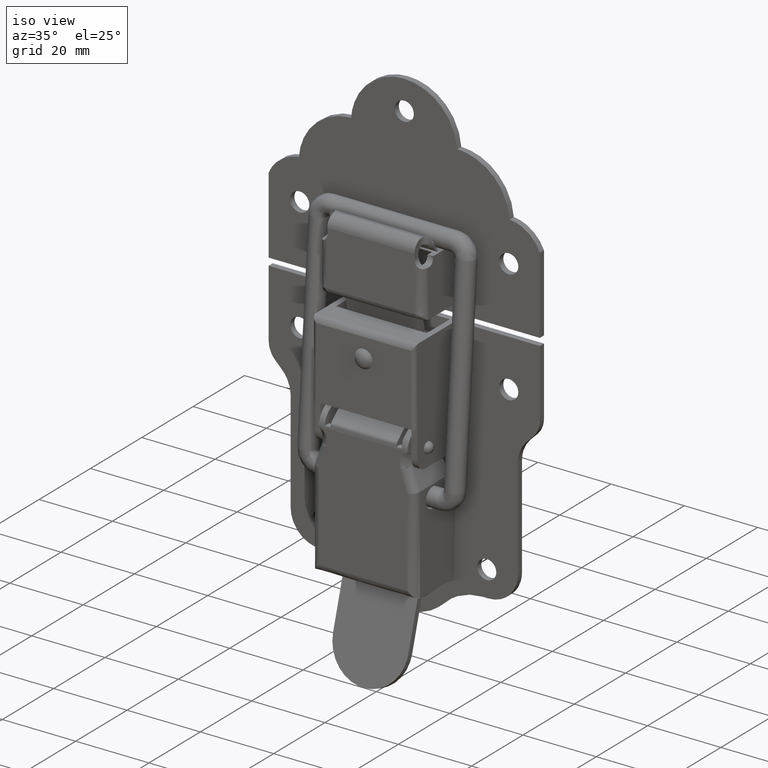
[diagram: clean part render]
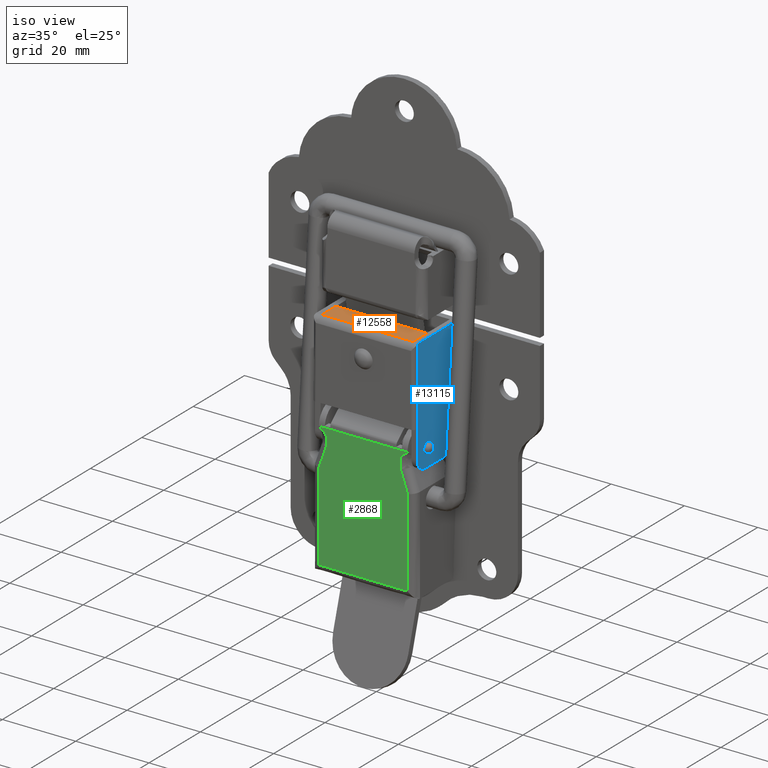
[diagram: same view with three faces highlighted in distinct colors, each labeled with its STEP entity id]
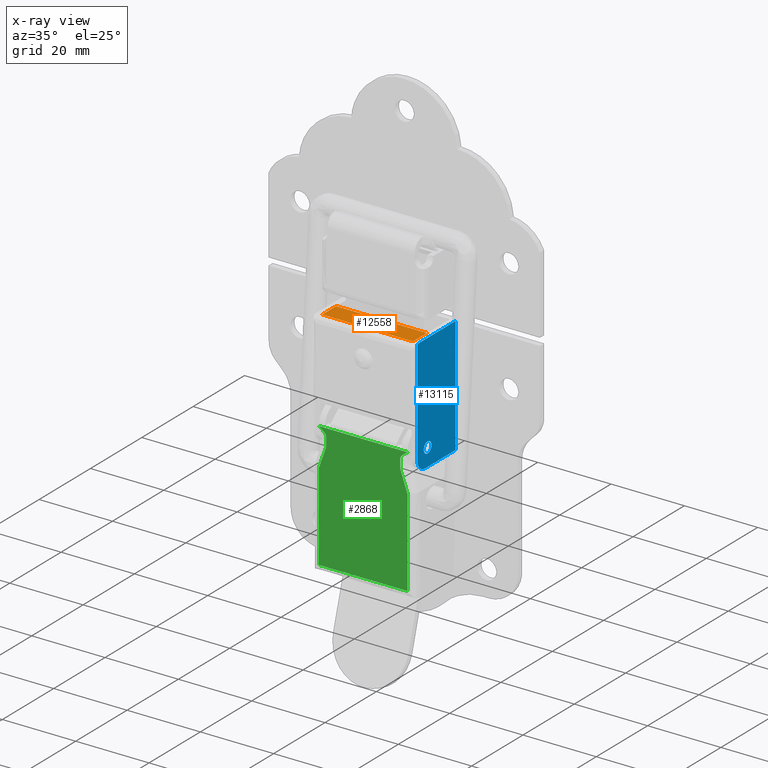
[diagram: x-ray of the same camera — body ghosted, the three highlighted faces saturated]
A machine part, iso view with three faces highlighted in distinct colors.
The next image is the same camera in x-ray (body ghosted, the three faces saturated) — at least one of them is partly hidden behind the body in this view.
Their STEP definitions:

[orange] entity #12558 — the highlighted face is a freeform B-spline surface patch.
#11180=CARTESIAN_POINT('',(12.390000000000001,-3.400000000000000,27.0));
#11181=VERTEX_POINT('',#11180);
#11195=CARTESIAN_POINT('',(-12.390000000000001,-3.400000000000000,27.0));
#11196=VERTEX_POINT('',#11195);
#11197=CARTESIAN_POINT('',(-12.390000000000001,-3.400000000000000,27.0));
#11198=CARTESIAN_POINT('',(12.390000000000001,-3.400000000000000,27.0));
#11199=QUASI_UNIFORM_CURVE('',1,(#11197,#11198),.UNSPECIFIED.,.F.,.U.);
#11200=EDGE_CURVE('',#11196,#11181,#11199,.T.);
#11593=CARTESIAN_POINT('',(12.390000000000001,2.0,27.0));
#11594=VERTEX_POINT('',#11593);
#11595=CARTESIAN_POINT('',(12.390000000000001,2.0,27.0));
#11596=CARTESIAN_POINT('',(12.390000000000001,-3.400000000000000,27.0));
#11597=QUASI_UNIFORM_CURVE('',1,(#11595,#11596),.UNSPECIFIED.,.F.,.U.);
#11598=EDGE_CURVE('',#11594,#11181,#11597,.T.);
#11632=CARTESIAN_POINT('',(-12.390000000000001,2.0,27.0));
#11633=VERTEX_POINT('',#11632);
#11634=CARTESIAN_POINT('',(-12.390000000000001,-3.400000000000000,27.0));
#11635=CARTESIAN_POINT('',(-12.390000000000001,2.0,27.0));
#11636=QUASI_UNIFORM_CURVE('',1,(#11634,#11635),.UNSPECIFIED.,.F.,.U.);
#11637=EDGE_CURVE('',#11196,#11633,#11636,.T.);
#11668=CARTESIAN_POINT('',(-12.390000000000001,2.0,27.0));
#11669=CARTESIAN_POINT('',(12.390000000000001,2.0,27.0));
#11670=QUASI_UNIFORM_CURVE('',1,(#11668,#11669),.UNSPECIFIED.,.F.,.U.);
#11671=EDGE_CURVE('',#11633,#11594,#11670,.T.);
#12547=CARTESIAN_POINT('',(13.627761417205370,-3.669730090916425,27.0));
#12548=CARTESIAN_POINT('',(-13.627761638755841,-3.669730090916425,27.0));
#12549=CARTESIAN_POINT('',(13.627761417205370,2.269730139196187,27.0));
#12550=CARTESIAN_POINT('',(-13.627761638755841,2.269730139196187,27.0));
#12551=B_SPLINE_SURFACE_WITH_KNOTS('',1,1,((#12547,#12549),(#12548,#12550)),.UNSPECIFIED.,.F.,.F.,.U.,(2,2),(2,2),(0.0,27.255523055961209),(0.0,5.939460230112612),.UNSPECIFIED.);
#12552=ORIENTED_EDGE('',*,*,#11637,.F.);
#12553=ORIENTED_EDGE('',*,*,#11200,.T.);
#12554=ORIENTED_EDGE('',*,*,#11598,.F.);
#12555=ORIENTED_EDGE('',*,*,#11671,.F.);
#12556=EDGE_LOOP('',(#12552,#12553,#12554,#12555));
#12557=FACE_OUTER_BOUND('',#12556,.T.);
#12558=ADVANCED_FACE('',(#12557),#12551,.F.);

[blue] entity #13115 — the highlighted face is a freeform B-spline surface patch.
#8192=CARTESIAN_POINT('',(13.999700000000001,1.495376000542177,-0.117688644322557));
#8193=VERTEX_POINT('',#8192);
#8199=CARTESIAN_POINT('',(13.999700000000001,0.0,1.500000000000000));
#8200=VERTEX_POINT('',#8199);
#8201=CARTESIAN_POINT('',(13.999699999999997,1.495376000542178,-0.117688644322557));
#8202=CARTESIAN_POINT('',(13.999700000000002,1.500000000000000,-0.058935161245685));
#8203=CARTESIAN_POINT('',(13.999700000000001,1.500000000000000,0.0));
#8204=CARTESIAN_POINT('',(13.999700000000001,1.500000000000000,1.500000000000000));
#8205=CARTESIAN_POINT('',(13.999700000000001,0.0,1.500000000000000));
#8213=(BOUNDED_CURVE()B_SPLINE_CURVE(2,(#8201,#8202,#8203,#8204,#8205),.UNSPECIFIED.,.F.,.U.)B_SPLINE_CURVE_WITH_KNOTS((3,2,3),(0.736331300465217,0.750000000000000,1.0),.UNSPECIFIED.)CURVE()GEOMETRIC_REPRESENTATION_ITEM()RATIONAL_B_SPLINE_CURVE((0.969723355822151,0.983986122385054,1.0,0.707106781186548,1.0))REPRESENTATION_ITEM(''));
#8214=EDGE_CURVE('',#8193,#8200,#8213,.T.);
#8216=CARTESIAN_POINT('',(13.999700000000001,-1.495376000542178,0.117688644322557));
#8217=VERTEX_POINT('',#8216);
#8218=CARTESIAN_POINT('',(13.999700000000001,0.0,1.500000000000000));
#8219=CARTESIAN_POINT('',(13.999700000000008,-1.386585736127873,1.500000000000000));
#8220=CARTESIAN_POINT('',(13.999700000000001,-1.495376000542177,0.117688644322557));
#8228=(BOUNDED_CURVE()B_SPLINE_CURVE(2,(#8218,#8219,#8220),.UNSPECIFIED.,.F.,.U.)B_SPLINE_CURVE_WITH_KNOTS((3,3),(0.0,0.236331300465217),.UNSPECIFIED.)CURVE()GEOMETRIC_REPRESENTATION_ITEM()RATIONAL_B_SPLINE_CURVE((1.0,0.723120658801494,0.969723355822151))REPRESENTATION_ITEM(''));
#8229=EDGE_CURVE('',#8200,#8217,#8228,.T.);
#8275=CARTESIAN_POINT('',(13.999700000000001,0.0,-1.500000000000000));
#8276=VERTEX_POINT('',#8275);
#8277=CARTESIAN_POINT('',(13.999699999999997,-1.495376000542178,0.117688644322557));
#8278=CARTESIAN_POINT('',(13.999700000000002,-1.500000000000000,0.058935161245685));
#8279=CARTESIAN_POINT('',(13.999700000000001,-1.500000000000000,0.0));
#8280=CARTESIAN_POINT('',(13.999700000000001,-1.500000000000000,-1.500000000000000));
#8281=CARTESIAN_POINT('',(13.999700000000001,0.0,-1.500000000000000));
#8289=(BOUNDED_CURVE()B_SPLINE_CURVE(2,(#8277,#8278,#8279,#8280,#8281),.UNSPECIFIED.,.F.,.U.)B_SPLINE_CURVE_WITH_KNOTS((3,2,3),(0.236331300465217,0.250000000000000,0.500000000000000),.UNSPECIFIED.)CURVE()GEOMETRIC_REPRESENTATION_ITEM()RATIONAL_B_SPLINE_CURVE((0.969723355822151,0.983986122385054,1.0,0.707106781186548,1.0))REPRESENTATION_ITEM(''));
#8290=EDGE_CURVE('',#8217,#8276,#8289,.T.);
#8292=CARTESIAN_POINT('',(13.999700000000001,0.0,-1.500000000000000));
#8293=CARTESIAN_POINT('',(13.999700000000004,1.386585736127881,-1.500000000000000));
#8294=CARTESIAN_POINT('',(13.999699999999999,1.495376000542177,-0.117688644322557));
#8302=(BOUNDED_CURVE()B_SPLINE_CURVE(2,(#8292,#8293,#8294),.UNSPECIFIED.,.F.,.U.)B_SPLINE_CURVE_WITH_KNOTS((3,3),(0.500000000000000,0.736331300465218),.UNSPECIFIED.)CURVE()GEOMETRIC_REPRESENTATION_ITEM()RATIONAL_B_SPLINE_CURVE((1.0,0.723120658801493,0.969723355822153))REPRESENTATION_ITEM(''));
#8303=EDGE_CURVE('',#8276,#8193,#8302,.T.);
#9453=CARTESIAN_POINT('',(13.999700000000001,-1.0,-4.800000000000099));
#9454=VERTEX_POINT('',#9453);
#9460=CARTESIAN_POINT('',(13.999700000000001,-4.0,-1.800000000000095));
#9461=VERTEX_POINT('',#9460);
#9462=CARTESIAN_POINT('',(13.999700000000001,-4.0,-1.800000000000095));
#9463=CARTESIAN_POINT('',(13.999700000000001,-4.000000000000000,-4.800000000000096));
#9464=CARTESIAN_POINT('',(13.999700000000001,-1.0,-4.800000000000095));
#9472=(BOUNDED_CURVE()B_SPLINE_CURVE(2,(#9462,#9463,#9464),.UNSPECIFIED.,.F.,.U.)CURVE()GEOMETRIC_REPRESENTATION_ITEM()QUASI_UNIFORM_CURVE()RATIONAL_B_SPLINE_CURVE((1.0,0.707106781186548,1.0))REPRESENTATION_ITEM(''));
#9473=EDGE_CURVE('',#9461,#9454,#9472,.T.);
#9635=CARTESIAN_POINT('',(13.999700000000001,-4.0,5.999999999999920));
#9636=VERTEX_POINT('',#9635);
#9652=CARTESIAN_POINT('',(13.999700000000001,-4.0,26.883239697419150));
#9653=VERTEX_POINT('',#9652);
#9654=CARTESIAN_POINT('',(13.999700000000001,-4.0,26.883239697419150));
#9655=CARTESIAN_POINT('',(13.999700000000001,-4.0,5.999999999999920));
#9656=QUASI_UNIFORM_CURVE('',1,(#9654,#9655),.UNSPECIFIED.,.F.,.U.);
#9657=EDGE_CURVE('',#9653,#9636,#9656,.T.);
#11136=CARTESIAN_POINT('',(13.999700000000001,-3.399999999999960,27.0));
#11137=VERTEX_POINT('',#11136);
#11138=CARTESIAN_POINT('',(13.999700000000001,-3.400000000000000,27.0));
#11139=CARTESIAN_POINT('',(13.999699999999999,-3.711360806882309,26.999999999999996));
#11140=CARTESIAN_POINT('',(13.999700000000001,-3.999999999999993,26.883239697419139));
#11148=(BOUNDED_CURVE()B_SPLINE_CURVE(2,(#11138,#11139,#11140),.UNSPECIFIED.,.F.,.U.)CURVE()GEOMETRIC_REPRESENTATION_ITEM()QUASI_UNIFORM_CURVE()RATIONAL_B_SPLINE_CURVE((1.0,0.981586677498976,1.0))REPRESENTATION_ITEM(''));
#11149=EDGE_CURVE('',#11137,#9653,#11148,.T.);
#11721=CARTESIAN_POINT('',(13.999700000000001,-4.0,-1.800000000000095));
#11722=CARTESIAN_POINT('',(13.999700000000001,-4.0,5.999999999999920));
#11723=QUASI_UNIFORM_CURVE('',1,(#11721,#11722),.UNSPECIFIED.,.F.,.U.);
#11724=EDGE_CURVE('',#9461,#9636,#11723,.T.);
#12644=CARTESIAN_POINT('',(13.999700000000001,10.900000000000119,27.0));
#12645=VERTEX_POINT('',#12644);
#12651=CARTESIAN_POINT('',(13.999700000000001,10.900000000000119,-4.800000000000099));
#12652=VERTEX_POINT('',#12651);
#12653=CARTESIAN_POINT('',(13.999700000000001,10.900000000000119,-4.800000000000099));
#12654=CARTESIAN_POINT('',(13.999700000000001,10.900000000000119,27.0));
#12655=QUASI_UNIFORM_CURVE('',1,(#12653,#12654),.UNSPECIFIED.,.F.,.U.);
#12656=EDGE_CURVE('',#12652,#12645,#12655,.T.);
#12728=CARTESIAN_POINT('',(13.999700000000001,-1.0,-4.800000000000099));
#12729=CARTESIAN_POINT('',(13.999700000000001,10.900000000000119,-4.800000000000099));
#12730=QUASI_UNIFORM_CURVE('',1,(#12728,#12729),.UNSPECIFIED.,.F.,.U.);
#12731=EDGE_CURVE('',#9454,#12652,#12730,.T.);
#12812=CARTESIAN_POINT('',(13.999700000000001,-3.399999999999960,27.0));
#12813=CARTESIAN_POINT('',(13.999700000000001,10.900000000000119,27.0));
#12814=QUASI_UNIFORM_CURVE('',1,(#12812,#12813),.UNSPECIFIED.,.F.,.U.);
#12815=EDGE_CURVE('',#11137,#12645,#12814,.T.);
#13095=CARTESIAN_POINT('',(13.999700000000001,-4.744254917887648,-6.388410236881183));
#13096=CARTESIAN_POINT('',(13.999700000000001,-4.744254917887648,28.588410805509390));
#13097=CARTESIAN_POINT('',(13.999700000000001,11.644254251805870,-6.388410236881182));
#13098=CARTESIAN_POINT('',(13.999700000000001,11.644254251805870,28.588410805509390));
#13099=B_SPLINE_SURFACE_WITH_KNOTS('',1,1,((#13095,#13097),(#13096,#13098)),.UNSPECIFIED.,.F.,.F.,.U.,(2,2),(2,2),(0.0,34.976821042390583),(0.0,16.388509169693510),.UNSPECIFIED.);
#13100=ORIENTED_EDGE('',*,*,#11724,.F.);
#13101=ORIENTED_EDGE('',*,*,#9473,.T.);
#13102=ORIENTED_EDGE('',*,*,#12731,.T.);
#13103=ORIENTED_EDGE('',*,*,#12656,.T.);
#13104=ORIENTED_EDGE('',*,*,#12815,.F.);
#13105=ORIENTED_EDGE('',*,*,#11149,.T.);
#13106=ORIENTED_EDGE('',*,*,#9657,.T.);
#13107=EDGE_LOOP('',(#13100,#13101,#13102,#13103,#13104,#13105,#13106));
#13108=FACE_OUTER_BOUND('',#13107,.T.);
#13109=ORIENTED_EDGE('',*,*,#8303,.F.);
#13110=ORIENTED_EDGE('',*,*,#8290,.F.);
#13111=ORIENTED_EDGE('',*,*,#8229,.F.);
#13112=ORIENTED_EDGE('',*,*,#8214,.F.);
#13113=EDGE_LOOP('',(#13109,#13110,#13111,#13112));
#13114=FACE_BOUND('',#13113,.T.);
#13115=ADVANCED_FACE('',(#13108,#13114),#13099,.F.);

[green] entity #2868 — the highlighted face is a freeform B-spline surface patch.
#1280=CARTESIAN_POINT('',(12.099700000000000,-5.100000000000001,-34.0));
#1281=VERTEX_POINT('',#1280);
#1297=CARTESIAN_POINT('',(-12.100000000000000,-5.100000000000001,-34.0));
#1298=VERTEX_POINT('',#1297);
#1299=CARTESIAN_POINT('',(-12.100000000000000,-5.100000000000001,-34.0));
#1300=CARTESIAN_POINT('',(12.099700000000000,-5.100000000000001,-34.0));
#1301=QUASI_UNIFORM_CURVE('',1,(#1299,#1300),.UNSPECIFIED.,.F.,.U.);
#1302=EDGE_CURVE('',#1298,#1281,#1301,.T.);
#1446=CARTESIAN_POINT('',(10.100000000000000,-5.100000000000001,-4.339120772238675));
#1447=VERTEX_POINT('',#1446);
#1493=CARTESIAN_POINT('',(12.100000000000000,-5.099999999999910,0.249999999999915));
#1494=VERTEX_POINT('',#1493);
#1502=CARTESIAN_POINT('',(10.100000000000000,-5.100000000000001,-2.044560386119382));
#1503=VERTEX_POINT('',#1502);
#1504=CARTESIAN_POINT('',(10.100000000000000,-5.100000000000001,-2.044560386119382));
#1505=CARTESIAN_POINT('',(10.100000000000000,-5.100000000000001,-1.988040257412936));
#1506=CARTESIAN_POINT('',(10.100000000000000,-5.100000000000001,-1.931520128706491));
#1507=CARTESIAN_POINT('',(10.100000000000000,-5.100000000000001,-1.875000000000045));
#1508=CARTESIAN_POINT('',(10.100000000000000,-5.100000000000001,-1.166666666666722));
#1509=CARTESIAN_POINT('',(11.100000000000000,-5.100000000000001,-0.458333333333403));
#1510=CARTESIAN_POINT('',(12.100000000000000,-5.099999999999910,0.249999999999915));
#1511=B_SPLINE_CURVE_WITH_KNOTS('',3,(#1504,#1505,#1506,#1507,#1508,#1509,#1510),.UNSPECIFIED.,.F.,.U.,(4,3,4),(0.833333333333346,0.845649446051136,1.0),.UNSPECIFIED.);
#1512=EDGE_CURVE('',#1503,#1494,#1511,.T.);
#1514=CARTESIAN_POINT('',(10.100000000000000,-5.100000000000001,-4.339120772238675));
#1515=CARTESIAN_POINT('',(10.100000000000000,-5.100000000000001,-3.574267310198910));
#1516=CARTESIAN_POINT('',(10.100000000000000,-5.100000000000001,-2.809413848159146));
#1517=CARTESIAN_POINT('',(10.100000000000000,-5.100000000000001,-2.044560386119382));
#1518=B_SPLINE_CURVE_WITH_KNOTS('',3,(#1514,#1515,#1516,#1517),.UNSPECIFIED.,.F.,.U.,(4,4),(0.666666666666692,0.833333333333346),.UNSPECIFIED.);
#1519=EDGE_CURVE('',#1447,#1503,#1518,.T.);
#1538=CARTESIAN_POINT('',(12.099700000000000,-5.100000000000001,-10.066305112236799));
#1539=VERTEX_POINT('',#1538);
#1563=CARTESIAN_POINT('',(12.099700000000000,-5.100000000000001,-10.066305112236799));
#1564=CARTESIAN_POINT('',(10.100000000000000,-5.100000000000001,-4.339120772238675));
#1565=QUASI_UNIFORM_CURVE('',1,(#1563,#1564),.UNSPECIFIED.,.F.,.U.);
#1566=EDGE_CURVE('',#1539,#1447,#1565,.T.);
#1585=CARTESIAN_POINT('',(12.099700000000000,-5.100000000000001,-34.0));
#1586=CARTESIAN_POINT('',(12.099700000000000,-5.100000000000001,-10.066305112236799));
#1587=QUASI_UNIFORM_CURVE('',1,(#1585,#1586),.UNSPECIFIED.,.F.,.U.);
#1588=EDGE_CURVE('',#1281,#1539,#1587,.T.);
#1629=CARTESIAN_POINT('',(-10.100000000000000,-5.100000000000001,-2.044560386119668));
#1630=VERTEX_POINT('',#1629);
#1631=CARTESIAN_POINT('',(-10.100000000000000,-5.100000000000001,-4.339120772239245));
#1632=VERTEX_POINT('',#1631);
#1633=CARTESIAN_POINT('',(-10.100000000000000,-5.100000000000001,-2.044560386119668));
#1634=CARTESIAN_POINT('',(-10.100000000000000,-5.100000000000001,-2.809413848159526));
#1635=CARTESIAN_POINT('',(-10.100000000000000,-5.100000000000001,-3.574267310199385));
#1636=CARTESIAN_POINT('',(-10.100000000000000,-5.100000000000001,-4.339120772239244));
#1637=B_SPLINE_CURVE_WITH_KNOTS('',3,(#1633,#1634,#1635,#1636),.UNSPECIFIED.,.F.,.U.,(4,4),(0.166666666666675,0.333333333333349),.UNSPECIFIED.);
#1638=EDGE_CURVE('',#1630,#1632,#1637,.T.);
#1640=CARTESIAN_POINT('',(-12.100000000000000,-5.099999999999910,0.249999999999915));
#1641=VERTEX_POINT('',#1640);
#1642=CARTESIAN_POINT('',(-12.100000000000000,-5.099999999999910,0.249999999999915));
#1643=CARTESIAN_POINT('',(-11.100000000000000,-5.100000000000001,-0.458333333333403));
#1644=CARTESIAN_POINT('',(-10.100000000000000,-5.100000000000001,-1.166666666666722));
#1645=CARTESIAN_POINT('',(-10.100000000000000,-5.100000000000001,-1.875000000000045));
#1646=CARTESIAN_POINT('',(-10.100000000000000,-5.100000000000001,-1.931520128706586));
#1647=CARTESIAN_POINT('',(-10.100000000000000,-5.100000000000001,-1.988040257413127));
#1648=CARTESIAN_POINT('',(-10.100000000000000,-5.100000000000001,-2.044560386119668));
#1649=B_SPLINE_CURVE_WITH_KNOTS('',3,(#1642,#1643,#1644,#1645,#1646,#1647,#1648),.UNSPECIFIED.,.F.,.U.,(4,3,4),(0.0,0.154350553948864,0.166666666666675),.UNSPECIFIED.);
#1650=EDGE_CURVE('',#1641,#1630,#1649,.T.);
#1723=CARTESIAN_POINT('',(-12.100000000000000,-5.100000000000001,-10.067164318769221));
#1724=VERTEX_POINT('',#1723);
#1738=CARTESIAN_POINT('',(-10.100000000000000,-5.100000000000001,-4.339120772239245));
#1739=CARTESIAN_POINT('',(-12.100000000000000,-5.100000000000001,-10.067164318769221));
#1740=QUASI_UNIFORM_CURVE('',1,(#1738,#1739),.UNSPECIFIED.,.F.,.U.);
#1741=EDGE_CURVE('',#1632,#1724,#1740,.T.);
#1772=CARTESIAN_POINT('',(-12.100000000000000,-5.100000000000001,-10.067164318769221));
#1773=CARTESIAN_POINT('',(-12.100000000000000,-5.100000000000001,-34.0));
#1774=QUASI_UNIFORM_CURVE('',1,(#1772,#1773),.UNSPECIFIED.,.F.,.U.);
#1775=EDGE_CURVE('',#1724,#1298,#1774,.T.);
#2841=CARTESIAN_POINT('',(12.100000000000000,-5.099999999999910,0.249999999999915));
#2842=CARTESIAN_POINT('',(-12.100000000000000,-5.099999999999910,0.249999999999915));
#2843=QUASI_UNIFORM_CURVE('',1,(#2841,#2842),.UNSPECIFIED.,.F.,.U.);
#2844=EDGE_CURVE('',#1494,#1641,#2843,.T.);
#2851=CARTESIAN_POINT('',(-13.308790407440281,-5.100000000000000,1.960787433616764));
#2852=CARTESIAN_POINT('',(-13.308790407440281,-5.100000000000000,-35.710788352273440));
#2853=CARTESIAN_POINT('',(13.308790623805139,-5.100000000000001,1.960787433616764));
#2854=CARTESIAN_POINT('',(13.308790623805139,-5.100000000000001,-35.710788352273440));
#2855=B_SPLINE_SURFACE_WITH_KNOTS('',1,1,((#2851,#2853),(#2852,#2854)),.UNSPECIFIED.,.F.,.F.,.U.,(2,2),(2,2),(0.0,37.671575785890212),(0.0,26.617581031245411),.UNSPECIFIED.);
#2856=ORIENTED_EDGE('',*,*,#1775,.T.);
#2857=ORIENTED_EDGE('',*,*,#1302,.T.);
#2858=ORIENTED_EDGE('',*,*,#1588,.T.);
#2859=ORIENTED_EDGE('',*,*,#1566,.T.);
#2860=ORIENTED_EDGE('',*,*,#1519,.T.);
#2861=ORIENTED_EDGE('',*,*,#1512,.T.);
#2862=ORIENTED_EDGE('',*,*,#2844,.T.);
#2863=ORIENTED_EDGE('',*,*,#1650,.T.);
#2864=ORIENTED_EDGE('',*,*,#1638,.T.);
#2865=ORIENTED_EDGE('',*,*,#1741,.T.);
#2866=EDGE_LOOP('',(#2856,#2857,#2858,#2859,#2860,#2861,#2862,#2863,#2864,#2865));
#2867=FACE_OUTER_BOUND('',#2866,.T.);
#2868=ADVANCED_FACE('',(#2867),#2855,.T.);